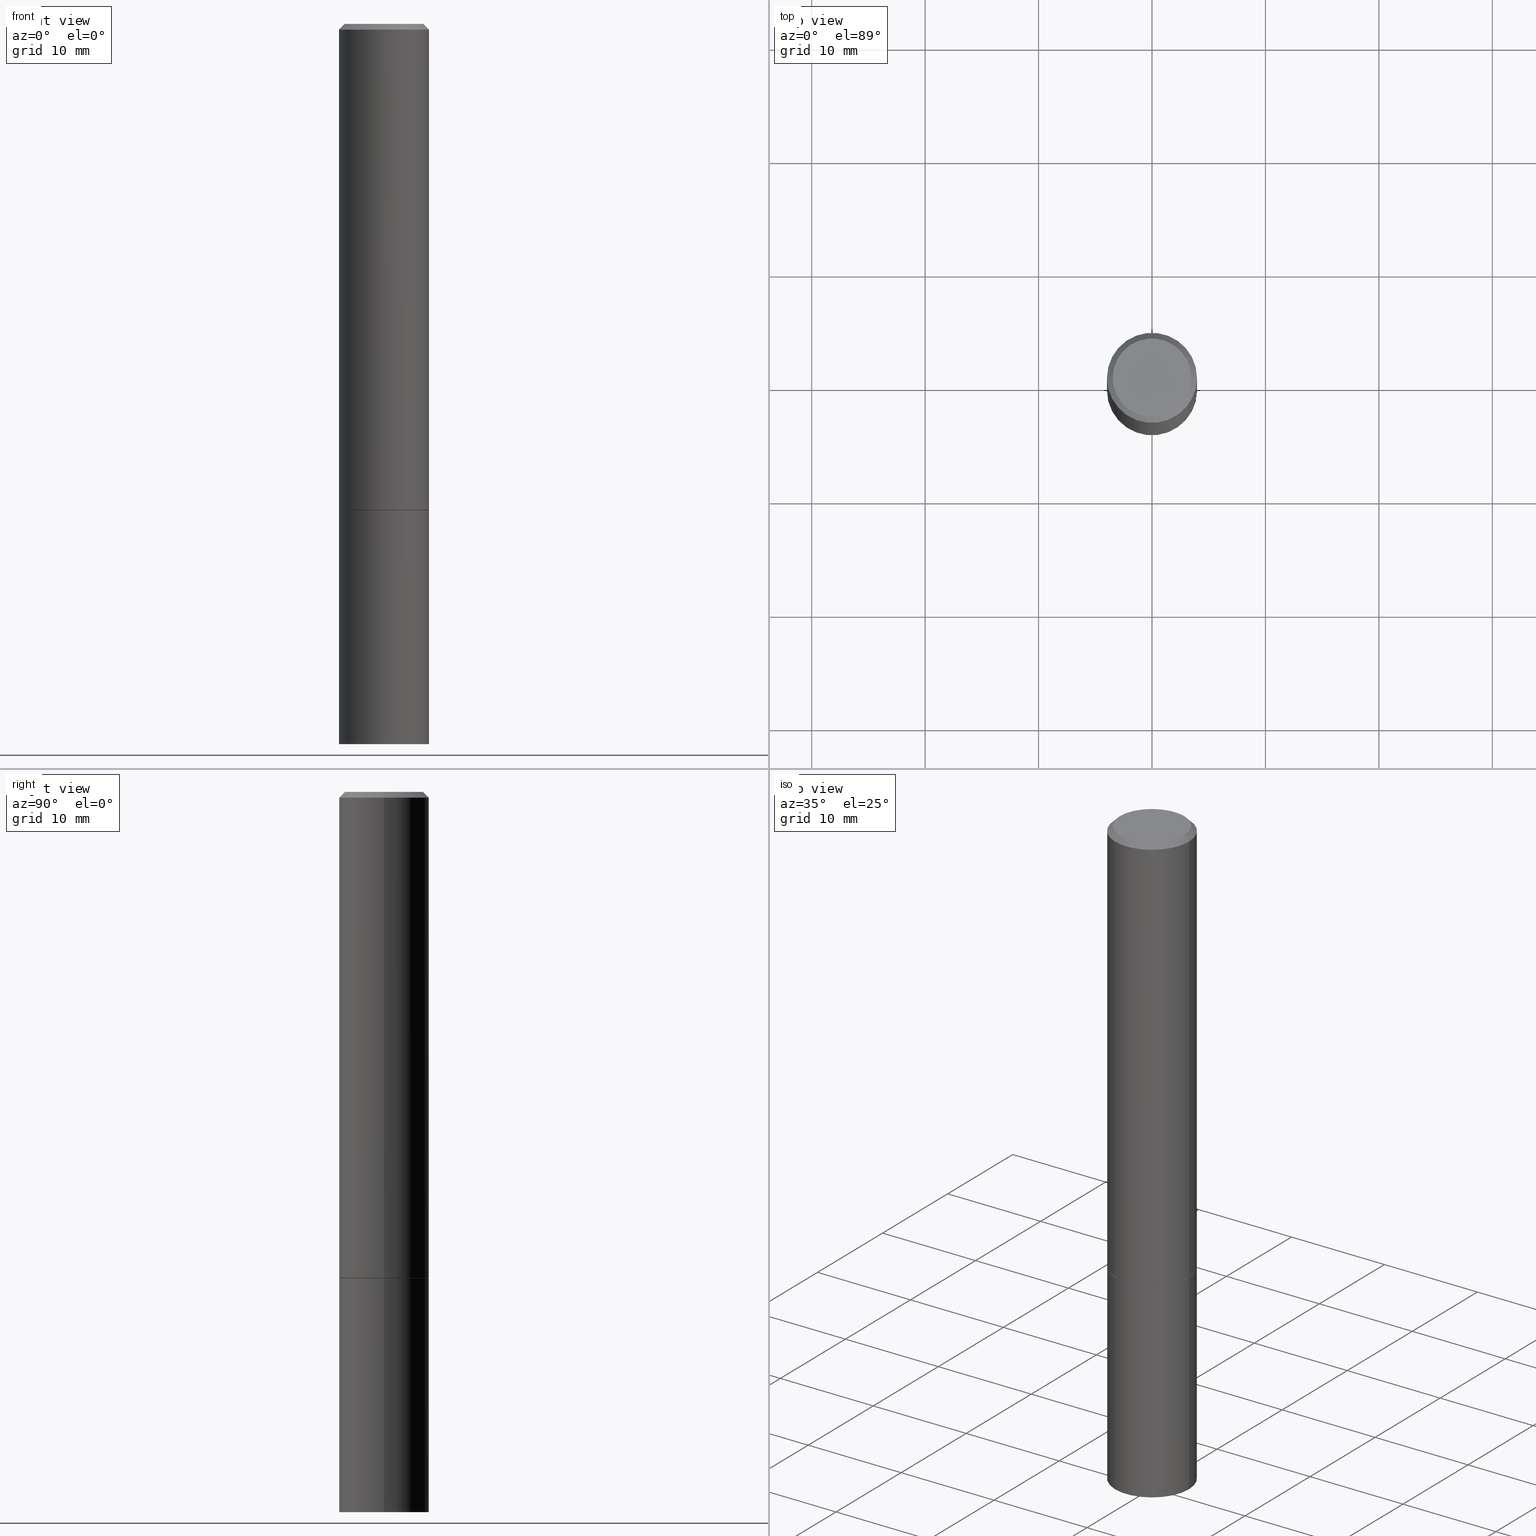
[diagram: canonical four-view strip — front | top / right | iso, engineering-drawing reading convention]
A machine part, canonical four-view strip (front | top / right | iso — engineering-drawing reading convention). The complete STEP part file that produces these views, byte-faithful:
ISO-10303-21;
HEADER;
FILE_DESCRIPTION (( 'STEP AP203' ),
    '1' );
FILE_NAME ('35283.STEP',
    '2024-02-27T18:20:43',
    ( '' ),
    ( '' ),
    'SwSTEP 2.0',
    'SolidWorks 2023',
    '' );
FILE_SCHEMA (( 'CONFIG_CONTROL_DESIGN' ));
ENDSEC;

DATA;
#1 = EDGE_CURVE ( 'NONE', #228, #45, #48, .T. ) ;
#2 = DIRECTION ( 'NONE',  ( -2.445468806185136597E-29, 3.491481338843145583E-15, 1.000000000000000000 ) ) ;
#3 = DIRECTION ( 'NONE',  ( 2.445468806185136597E-29, -3.491481338843145583E-15, -1.000000000000000000 ) ) ;
#4 = CC_DESIGN_APPROVAL ( #40, ( #43 ) ) ;
#5 = CALENDAR_DATE ( 2024, 27, 2 ) ;
#6 = DIRECTION ( 'NONE',  ( -1.000000000000000000, 6.982962677686266711E-15, 0.000000000000000000 ) ) ;
#7 = CALENDAR_DATE ( 2024, 27, 2 ) ;
#8 = CYLINDRICAL_SURFACE ( 'NONE', #366, 0.1562499999999999167 ) ;
#9 = ORIENTED_EDGE ( 'NONE', *, *, #169, .F. ) ;
#10 = ORIENTED_EDGE ( 'NONE', *, *, #73, .F. ) ;
#11 = PERSON_AND_ORGANIZATION ( #348, #345 ) ;
#12 = CONICAL_SURFACE ( 'NONE', #36, 0.1552499999999999991, 0.7853981633974141952 ) ;
#13 = PRODUCT ( '35283', '35283', '', ( #49 ) ) ;
#14 = ORIENTED_EDGE ( 'NONE', *, *, #269, .T. ) ;
#15 = VERTEX_POINT ( 'NONE', #127 ) ;
#16 = PLANE ( 'NONE',  #111 ) ;
#17 = VECTOR ( 'NONE', #118, 39.37007874015748143 ) ;
#18 = ORIENTED_EDGE ( 'NONE', *, *, #1, .T. ) ;
#19 = ADVANCED_FACE ( 'NONE', ( #157 ), #16, .F. ) ;
#20 = CARTESIAN_POINT ( 'NONE',  ( 0.000000000000000000, 0.000000000000000000, 0.000000000000000000 ) ) ;
#21 = EDGE_CURVE ( 'NONE', #15, #45, #324, .T. ) ;
#22 = CIRCLE ( 'NONE', #141, 0.1562500000000000000 ) ;
#23 = EDGE_CURVE ( 'NONE', #206, #83, #282, .T. ) ;
#24 = FACE_OUTER_BOUND ( 'NONE', #323, .T. ) ;
#25 = DIRECTION ( 'NONE',  ( 0.000000000000000000, 0.000000000000000000, 1.000000000000000000 ) ) ;
#26 = PERSON_AND_ORGANIZATION ( #348, #345 ) ;
#27 = DIRECTION ( 'NONE',  ( -2.445468806185136877E-29, 3.491481338843145188E-15, 1.000000000000000000 ) ) ;
#28 = CC_DESIGN_APPROVAL ( #322, ( #326 ) ) ;
#29 = ORIENTED_EDGE ( 'NONE', *, *, #352, .T. ) ;
#30 = CALENDAR_DATE ( 2024, 27, 2 ) ;
#31 = ORIENTED_EDGE ( 'NONE', *, *, #39, .F. ) ;
#32 = CIRCLE ( 'NONE', #257, 0.1362499999999998157 ) ;
#33 = PERSON_AND_ORGANIZATION_ROLE ( 'creator' ) ;
#34 = ORIENTED_EDGE ( 'NONE', *, *, #352, .F. ) ;
#35 = DIRECTION ( 'NONE',  ( 1.000000000000000000, -6.982962677686266711E-15, 4.876176775795935232E-29 ) ) ;
#36 = AXIS2_PLACEMENT_3D ( 'NONE', #296, #71, #99 ) ;
#37 = CARTESIAN_POINT ( 'NONE',  ( 4.127951344840510809E-29, -5.893620499967230340E-15, -1.688000000000000167 ) ) ;
#38 = DIRECTION ( 'NONE',  ( 0.7071067811865232589, -2.468850131082003836E-15, 0.7071067811865715536 ) ) ;
#39 = EDGE_CURVE ( 'NONE', #291, #206, #155, .T. ) ;
#40 = APPROVAL ( #146, 'UNSPECIFIED' ) ;
#41 = ORIENTED_EDGE ( 'NONE', *, *, #81, .T. ) ;
#42 = AXIS2_PLACEMENT_3D ( 'NONE', #219, #330, #163 ) ;
#43 = SECURITY_CLASSIFICATION ( '', '', #288 ) ;
#44 = ORIENTED_EDGE ( 'NONE', *, *, #50, .F. ) ;
#45 = VERTEX_POINT ( 'NONE', #94 ) ;
#46 = EDGE_CURVE ( 'NONE', #83, #206, #274, .T. ) ;
#47 = DIRECTION ( 'NONE',  ( -2.445468806185136597E-29, 3.491481338843145583E-15, 1.000000000000000000 ) ) ;
#48 = CIRCLE ( 'NONE', #72, 0.1562500000000000000 ) ;
#49 = MECHANICAL_CONTEXT ( 'NONE', #226, 'mechanical' ) ;
#50 = EDGE_CURVE ( 'NONE', #45, #228, #292, .T. ) ;
#51 = PLANE ( 'NONE',  #325 ) ;
#52 = CARTESIAN_POINT ( 'NONE',  ( 0.000000000000000000, 0.000000000000000000, 0.000000000000000000 ) ) ;
#53 = CLOSED_SHELL ( 'NONE', ( #242, #218, #107, #283 ) ) ;
#54 = LOCAL_TIME ( 13, 20, 43.00000000000000000, #235 ) ;
#55 = CARTESIAN_POINT ( 'NONE',  ( 4.890937612370281041E-31, -6.982962677686302702E-17, -0.02000000000000003511 ) ) ;
#56 = EDGE_LOOP ( 'NONE', ( #176, #41 ) ) ;
#57 = PERSON_AND_ORGANIZATION ( #348, #345 ) ;
#58 = EDGE_CURVE ( 'NONE', #15, #125, #132, .T. ) ;
#59 = CC_DESIGN_PERSON_AND_ORGANIZATION_ASSIGNMENT ( #11, #144, ( #79 ) ) ;
#60 = AXIS2_PLACEMENT_3D ( 'NONE', #186, #301, #6 ) ;
#61 = DIRECTION ( 'NONE',  ( -2.445468806185136597E-29, 3.491481338843145583E-15, 1.000000000000000000 ) ) ;
#62 = SHAPE_DEFINITION_REPRESENTATION ( #238, #130 ) ;
#63 = EDGE_LOOP ( 'NONE', ( #309, #358, #44, #353 ) ) ;
#64 = CARTESIAN_POINT ( 'NONE',  ( 4.127951344840510809E-29, -5.893620499967230340E-15, -1.688000000000000167 ) ) ;
#65 = DIRECTION ( 'NONE',  ( 1.000000000000000000, -6.982962677686269077E-15, 0.000000000000000000 ) ) ;
#66 = LOCAL_TIME ( 13, 20, 43.00000000000000000, #164 ) ;
#67 = CARTESIAN_POINT ( 'NONE',  ( 9.514286648347523799E-16, 0.1362499999999998157, -4.757143324173778663E-16 ) ) ;
#68 = DIRECTION ( 'NONE',  ( -2.438088387897960049E-29, 3.491481338843145188E-15, 1.000000000000000000 ) ) ;
#69 = DIRECTION ( 'NONE',  ( 1.000000000000000000, -6.982962677686265922E-15, 4.876176775795935793E-29 ) ) ;
#70 = DIRECTION ( 'NONE',  ( 2.438088387897960049E-29, -3.491481338843145188E-15, -1.000000000000000000 ) ) ;
#71 = DIRECTION ( 'NONE',  ( -2.445468806185136597E-29, 3.491481338843145583E-15, 1.000000000000000000 ) ) ;
#72 = AXIS2_PLACEMENT_3D ( 'NONE', #159, #215, #153 ) ;
#73 = EDGE_CURVE ( 'NONE', #321, #291, #22, .T. ) ;
#74 = ORIENTED_EDGE ( 'NONE', *, *, #81, .F. ) ;
#75 = LENGTH_MEASURE_WITH_UNIT ( LENGTH_MEASURE( 0.02539999999999999897 ), #183 );
#76 = FACE_OUTER_BOUND ( 'NONE', #122, .T. ) ;
#77 = CARTESIAN_POINT ( 'NONE',  ( 4.890937612370281041E-31, -6.982962677686302702E-17, -0.02000000000000003511 ) ) ;
#78 = VECTOR ( 'NONE', #328, 39.37007874015748143 ) ;
#79 = PRODUCT_DEFINITION_FORMATION_WITH_SPECIFIED_SOURCE ( 'ANY', '', #13, .NOT_KNOWN. ) ;
#80 = ADVANCED_FACE ( 'NONE', ( #181 ), #12, .T. ) ;
#81 = EDGE_CURVE ( 'NONE', #258, #167, #354, .T. ) ;
#82 = LOCAL_TIME ( 13, 20, 43.00000000000000000, #110 ) ;
#83 = VERTEX_POINT ( 'NONE', #185 ) ;
#84 = FACE_OUTER_BOUND ( 'NONE', #92, .T. ) ;
#85 = COORDINATED_UNIVERSAL_TIME_OFFSET ( 5, 0, .BEHIND. ) ;
#86 = EDGE_LOOP ( 'NONE', ( #203, #143, #231, #34 ) ) ;
#87 = DATE_TIME_ROLE ( 'classification_date' ) ;
#88 = DIRECTION ( 'NONE',  ( 1.000000000000000000, -6.982962677686266711E-15, 4.876176775795936353E-29 ) ) ;
#89 = VECTOR ( 'NONE', #91, 39.37007874015748143 ) ;
#90 = APPROVAL_DATE_TIME ( #115, #40 ) ;
#91 = DIRECTION ( 'NONE',  ( -2.445468806185136877E-29, 3.491481338843145188E-15, 1.000000000000000000 ) ) ;
#92 = EDGE_LOOP ( 'NONE', ( #270, #199, #239, #212 ) ) ;
#93 = DIRECTION ( 'NONE',  ( 1.000000000000000000, -6.982962677686269077E-15, 0.000000000000000000 ) ) ;
#94 = CARTESIAN_POINT ( 'NONE',  ( 0.1562500000000000000, -6.981216937016866506E-15, -1.687000000000000055 ) ) ;
#95 = AXIS2_PLACEMENT_3D ( 'NONE', #97, #241, #277 ) ;
#96 = CIRCLE ( 'NONE', #302, 0.1562499999999998057 ) ;
#97 = CARTESIAN_POINT ( 'NONE',  ( 4.127951344840510809E-29, -5.893620499967230340E-15, -1.688000000000000167 ) ) ;
#98 = DIRECTION ( 'NONE',  ( -2.445468806185136597E-29, 3.491481338843145583E-15, 1.000000000000000000 ) ) ;
#99 = DIRECTION ( 'NONE',  ( 1.000000000000000000, -6.982962677686268288E-15, 0.000000000000000000 ) ) ;
#100 = AXIS2_PLACEMENT_3D ( 'NONE', #204, #230, #88 ) ;
#101 = DIRECTION ( 'NONE',  ( 1.000000000000000000, -6.982962677686268288E-15, 0.000000000000000000 ) ) ;
#102 = CARTESIAN_POINT ( 'NONE',  ( -0.1552499999999999991, -4.785204448351452406E-15, -1.688000000000000167 ) ) ;
#103 = CC_DESIGN_PERSON_AND_ORGANIZATION_ASSIGNMENT ( #229, #33, ( #79 ) ) ;
#104 = CC_DESIGN_APPROVAL ( #158, ( #79 ) ) ;
#105 = DIRECTION ( 'NONE',  ( -0.7071067811865232589, 7.493145998870265808E-15, 0.7071067811865715536 ) ) ;
#106 = PERSON_AND_ORGANIZATION_ROLE ( 'design_owner' ) ;
#107 = ADVANCED_FACE ( 'NONE', ( #24 ), #51, .F. ) ;
#108 = DIRECTION ( 'NONE',  ( 1.000000000000000000, -6.982962677686265133E-15, 0.000000000000000000 ) ) ;
#109 = ORIENTED_EDGE ( 'NONE', *, *, #318, .F. ) ;
#110 = COORDINATED_UNIVERSAL_TIME_OFFSET ( 5, 0, .BEHIND. ) ;
#111 = AXIS2_PLACEMENT_3D ( 'NONE', #248, #68, #69 ) ;
#112 = AXIS2_PLACEMENT_3D ( 'NONE', #55, #47, #161 ) ;
#113 = DIRECTION ( 'NONE',  ( -2.445468806185136597E-29, 3.491481338843145583E-15, 1.000000000000000000 ) ) ;
#114 = ORIENTED_EDGE ( 'NONE', *, *, #58, .F. ) ;
#115 = DATE_AND_TIME ( #5, #82 ) ;
#116 = APPROVAL_STATUS ( 'not_yet_approved' ) ;
#117 = EDGE_CURVE ( 'NONE', #258, #341, #162, .T. ) ;
#118 = DIRECTION ( 'NONE',  ( -0.7071067811865467956, 2.468850131082249172E-15, -0.7071067811865482389 ) ) ;
#119 = VECTOR ( 'NONE', #38, 39.37007874015748854 ) ;
#120 = ORIENTED_EDGE ( 'NONE', *, *, #1, .F. ) ;
#121 = DATE_AND_TIME ( #7, #237 ) ;
#122 = EDGE_LOOP ( 'NONE', ( #174, #109, #316, #313 ) ) ;
#123 = CARTESIAN_POINT ( 'NONE',  ( 4.125505876034325766E-29, -5.890129018628387333E-15, -1.687000000000000055 ) ) ;
#124 = CC_DESIGN_PERSON_AND_ORGANIZATION_ASSIGNMENT ( #307, #207, ( #326 ) ) ;
#125 = VERTEX_POINT ( 'NONE', #102 ) ;
#126 = CIRCLE ( 'NONE', #293, 0.1562500000000000000 ) ;
#127 = CARTESIAN_POINT ( 'NONE',  ( 0.1552499999999999991, -6.977725455678023499E-15, -1.688000000000000167 ) ) ;
#128 = ADVANCED_FACE ( 'NONE', ( #252 ), #156, .T. ) ;
#129 = EDGE_LOOP ( 'NONE', ( #114, #311 ) ) ;
#130 = ADVANCED_BREP_SHAPE_REPRESENTATION ( '35283', ( #189, #312, #160 ), #245 ) ;
#131 = LINE ( 'NONE', #365, #205 ) ;
#132 = CIRCLE ( 'NONE', #95, 0.1552499999999999991 ) ;
#133 = CARTESIAN_POINT ( 'NONE',  ( 1.091087918388520392E-15, 0.1562499999999940881, -1.688000000000000611 ) ) ;
#134 = CYLINDRICAL_SURFACE ( 'NONE', #42, 0.1562499999999999167 ) ;
#135 = VECTOR ( 'NONE', #201, 39.37007874015748143 ) ;
#136 = CARTESIAN_POINT ( 'NONE',  ( -0.1562500000000000000, -1.869756298077466803E-15, -1.687000000000000055 ) ) ;
#137 = DATE_AND_TIME ( #30, #54 ) ;
#138 = DIRECTION ( 'NONE',  ( -2.445468806185136597E-29, 3.491481338843145583E-15, 1.000000000000000000 ) ) ;
#139 = PERSON_AND_ORGANIZATION ( #348, #345 ) ;
#140 = DIRECTION ( 'NONE',  ( -2.445468806185136597E-29, 3.491481338843145583E-15, 1.000000000000000000 ) ) ;
#141 = AXIS2_PLACEMENT_3D ( 'NONE', #246, #299, #93 ) ;
#142 = CONICAL_SURFACE ( 'NONE', #331, 0.1552499999999999991, 0.7853981633974141952 ) ;
#143 = ORIENTED_EDGE ( 'NONE', *, *, #187, .T. ) ;
#144 = PERSON_AND_ORGANIZATION_ROLE ( 'design_supplier' ) ;
#145 = CARTESIAN_POINT ( 'NONE',  ( -0.1562499999999998057, 1.021258291611614692E-15, -0.02000000000000003511 ) ) ;
#146 = APPROVAL_STATUS ( 'not_yet_approved' ) ;
#147 = CARTESIAN_POINT ( 'NONE',  ( -0.1562500000000000000, 1.110223024625156540E-15, -7.685836078523291160E-30 ) ) ;
#148 = ORIENTED_EDGE ( 'NONE', *, *, #46, .T. ) ;
#149 = CARTESIAN_POINT ( 'NONE',  ( 0.1562499999999998057, -1.141782438928663330E-15, -0.02000000000000003511 ) ) ;
#150 =( CONVERSION_BASED_UNIT ( 'INCH', #75 ) LENGTH_UNIT ( ) NAMED_UNIT ( #171 ) );
#151 = ORIENTED_EDGE ( 'NONE', *, *, #271, .F. ) ;
#152 = ADVANCED_FACE ( 'NONE', ( #193 ), #134, .T. ) ;
#153 = DIRECTION ( 'NONE',  ( 1.000000000000000000, -6.982962677686269077E-15, 0.000000000000000000 ) ) ;
#154 =( NAMED_UNIT ( * ) SI_UNIT ( $, .STERADIAN. ) SOLID_ANGLE_UNIT ( ) );
#155 = LINE ( 'NONE', #184, #195 ) ;
#156 = CONICAL_SURFACE ( 'NONE', #364, 0.1562499999999998057, 0.7853981633974472798 ) ;
#157 = FACE_OUTER_BOUND ( 'NONE', #129, .T. ) ;
#158 = APPROVAL ( #116, 'UNSPECIFIED' ) ;
#159 = CARTESIAN_POINT ( 'NONE',  ( 4.125505876034325766E-29, -5.890129018628387333E-15, -1.687000000000000055 ) ) ;
#160 = AXIS2_PLACEMENT_3D ( 'NONE', #52, #25, #304 ) ;
#161 = DIRECTION ( 'NONE',  ( 1.000000000000000000, -6.982962677686265133E-15, 0.000000000000000000 ) ) ;
#162 = LINE ( 'NONE', #224, #78 ) ;
#163 = DIRECTION ( 'NONE',  ( 1.000000000000000000, -6.982962677686265133E-15, 4.876176775795935232E-29 ) ) ;
#164 = COORDINATED_UNIVERSAL_TIME_OFFSET ( 5, 0, .BEHIND. ) ;
#165 = CC_DESIGN_SECURITY_CLASSIFICATION ( #43, ( #79 ) ) ;
#166 = CARTESIAN_POINT ( 'NONE',  ( 0.000000000000000000, 0.000000000000000000, 0.000000000000000000 ) ) ;
#167 = VERTEX_POINT ( 'NONE', #280 ) ;
#168 = APPROVAL_ROLE ( '' ) ;
#169 = EDGE_CURVE ( 'NONE', #125, #228, #131, .T. ) ;
#170 = LINE ( 'NONE', #145, #17 ) ;
#171 = DIMENSIONAL_EXPONENTS ( 1.000000000000000000, 0.000000000000000000, 0.000000000000000000, 0.000000000000000000, 0.000000000000000000, 0.000000000000000000, 0.000000000000000000 ) ;
#172 = CIRCLE ( 'NONE', #197, 0.1552499999999999991 ) ;
#173 = CARTESIAN_POINT ( 'NONE',  ( 0.1562500000000000000, -9.819791265496344905E-15, -2.500000000000000000 ) ) ;
#174 = ORIENTED_EDGE ( 'NONE', *, *, #117, .F. ) ;
#175 = APPROVAL_ROLE ( '' ) ;
#176 = ORIENTED_EDGE ( 'NONE', *, *, #318, .T. ) ;
#177 = CARTESIAN_POINT ( 'NONE',  ( 0.000000000000000000, 0.000000000000000000, 0.000000000000000000 ) ) ;
#178 = AXIS2_PLACEMENT_3D ( 'NONE', #244, #98, #65 ) ;
#179 = ORIENTED_EDGE ( 'NONE', *, *, #117, .T. ) ;
#180 = UNCERTAINTY_MEASURE_WITH_UNIT (LENGTH_MEASURE( 1.000000000000000082E-05 ), #150, 'distance_accuracy_value', 'NONE');
#181 = FACE_OUTER_BOUND ( 'NONE', #63, .T. ) ;
#182 = ORIENTED_EDGE ( 'NONE', *, *, #306, .T. ) ;
#183 =( LENGTH_UNIT ( ) NAMED_UNIT ( * ) SI_UNIT ( $, .METRE. ) );
#184 = CARTESIAN_POINT ( 'NONE',  ( 0.1562500000000000000, -1.091087918388479174E-15, 7.619026212181150377E-30 ) ) ;
#185 = CARTESIAN_POINT ( 'NONE',  ( -0.1562500000000000000, -6.200938898912389918E-15, -1.688000000000000167 ) ) ;
#186 = CARTESIAN_POINT ( 'NONE',  ( 4.890937612370281041E-31, -6.982962677686302702E-17, -0.02000000000000003511 ) ) ;
#187 = EDGE_CURVE ( 'NONE', #228, #294, #332, .T. ) ;
#188 = ADVANCED_FACE ( 'NONE', ( #76 ), #287, .T. ) ;
#189 = MANIFOLD_SOLID_BREP ( 'Body-Move/Copy2[1]', #53 ) ;
#190 = CARTESIAN_POINT ( 'NONE',  ( 4.127951344840510809E-29, -5.893620499967230340E-15, -1.688000000000000167 ) ) ;
#191 = DIRECTION ( 'NONE',  ( -1.000000000000000000, 6.982962677686266711E-15, 0.000000000000000000 ) ) ;
#192 = APPROVAL_STATUS ( 'not_yet_approved' ) ;
#193 = FACE_OUTER_BOUND ( 'NONE', #297, .T. ) ;
#194 = PERSON_AND_ORGANIZATION_ROLE ( 'classification_officer' ) ;
#195 = VECTOR ( 'NONE', #319, 39.37007874015748143 ) ;
#196 = CARTESIAN_POINT ( 'NONE',  ( 0.1362499999999998157, -1.038262645562516744E-15, 6.957025900226686667E-30 ) ) ;
#197 = AXIS2_PLACEMENT_3D ( 'NONE', #64, #138, #346 ) ;
#198 = CYLINDRICAL_SURFACE ( 'NONE', #360, 0.1562500000000000000 ) ;
#199 = ORIENTED_EDGE ( 'NONE', *, *, #73, .T. ) ;
#200 = CYLINDRICAL_SURFACE ( 'NONE', #100, 0.1562500000000000000 ) ;
#201 = DIRECTION ( 'NONE',  ( -2.445468806185136877E-29, 3.491481338843145188E-15, 1.000000000000000000 ) ) ;
#202 = CARTESIAN_POINT ( 'NONE',  ( 1.091087918388540310E-15, 0.1562499999999912570, -2.500000000000000444 ) ) ;
#203 = ORIENTED_EDGE ( 'NONE', *, *, #50, .T. ) ;
#204 = CARTESIAN_POINT ( 'NONE',  ( 0.000000000000000000, 0.000000000000000000, 0.000000000000000000 ) ) ;
#205 = VECTOR ( 'NONE', #105, 39.37007874015748854 ) ;
#206 = VERTEX_POINT ( 'NONE', #308 ) ;
#207 = PERSON_AND_ORGANIZATION_ROLE ( 'creator' ) ;
#208 = FACE_OUTER_BOUND ( 'NONE', #86, .T. ) ;
#209 = CARTESIAN_POINT ( 'NONE',  ( -0.1562499999999998057, 1.021258291611614692E-15, -0.02000000000000003511 ) ) ;
#210 = EDGE_LOOP ( 'NONE', ( #151, #10 ) ) ;
#211 = ORIENTED_EDGE ( 'NONE', *, *, #213, .F. ) ;
#212 = ORIENTED_EDGE ( 'NONE', *, *, #46, .F. ) ;
#213 = EDGE_CURVE ( 'NONE', #294, #341, #96, .T. ) ;
#214 = PLANE ( 'NONE',  #220 ) ;
#215 = DIRECTION ( 'NONE',  ( -2.445468806185136597E-29, 3.491481338843145583E-15, 1.000000000000000000 ) ) ;
#216 = DIRECTION ( 'NONE',  ( -2.445468806185136597E-29, 3.491481338843145583E-15, 1.000000000000000000 ) ) ;
#217 = AXIS2_PLACEMENT_3D ( 'NONE', #202, #310, #233 ) ;
#218 = ADVANCED_FACE ( 'NONE', ( #340 ), #290, .T. ) ;
#219 = CARTESIAN_POINT ( 'NONE',  ( 0.000000000000000000, 0.000000000000000000, 0.000000000000000000 ) ) ;
#220 = AXIS2_PLACEMENT_3D ( 'NONE', #67, #70, #268 ) ;
#221 = FACE_OUTER_BOUND ( 'NONE', #357, .T. ) ;
#222 = APPLICATION_PROTOCOL_DEFINITION ( 'international standard', 'config_control_design', 1994, #249 ) ;
#223 = CC_DESIGN_PERSON_AND_ORGANIZATION_ASSIGNMENT ( #26, #106, ( #13 ) ) ;
#224 = CARTESIAN_POINT ( 'NONE',  ( 0.1562499999999998057, -1.141782438928663330E-15, -0.02000000000000003511 ) ) ;
#225 = DIRECTION ( 'NONE',  ( 1.000000000000000000, -6.982962677686266711E-15, 4.876176775795936353E-29 ) ) ;
#226 = APPLICATION_CONTEXT ( 'configuration controlled 3d designs of mechanical parts and assemblies' ) ;
#227 = FACE_OUTER_BOUND ( 'NONE', #267, .T. ) ;
#228 = VERTEX_POINT ( 'NONE', #136 ) ;
#229 = PERSON_AND_ORGANIZATION ( #348, #345 ) ;
#230 = DIRECTION ( 'NONE',  ( -2.445468806185136597E-29, 3.491481338843145583E-15, 1.000000000000000000 ) ) ;
#231 = ORIENTED_EDGE ( 'NONE', *, *, #269, .F. ) ;
#232 = CARTESIAN_POINT ( 'NONE',  ( 0.000000000000000000, 0.000000000000000000, 0.000000000000000000 ) ) ;
#233 = DIRECTION ( 'NONE',  ( -1.000000000000000000, 6.982962677686265922E-15, -4.876176775795935793E-29 ) ) ;
#234 = ORIENTED_EDGE ( 'NONE', *, *, #23, .F. ) ;
#235 = COORDINATED_UNIVERSAL_TIME_OFFSET ( 5, 0, .BEHIND. ) ;
#236 = AXIS2_PLACEMENT_3D ( 'NONE', #123, #276, #356 ) ;
#237 = LOCAL_TIME ( 13, 20, 43.00000000000000000, #286 ) ;
#238 = PRODUCT_DEFINITION_SHAPE ( 'NONE', 'NONE',  #326 ) ;
#239 = ORIENTED_EDGE ( 'NONE', *, *, #39, .T. ) ;
#240 = CARTESIAN_POINT ( 'NONE',  ( 0.1552499999999999991, -6.977725455678023499E-15, -1.688000000000000167 ) ) ;
#241 = DIRECTION ( 'NONE',  ( -2.445468806185136597E-29, 3.491481338843145583E-15, 1.000000000000000000 ) ) ;
#242 = ADVANCED_FACE ( 'NONE', ( #227 ), #198, .T. ) ;
#243 = AXIS2_PLACEMENT_3D ( 'NONE', #20, #216, #327 ) ;
#244 = CARTESIAN_POINT ( 'NONE',  ( 4.127951344840510809E-29, -5.893620499967230340E-15, -1.688000000000000167 ) ) ;
#245 =( GEOMETRIC_REPRESENTATION_CONTEXT ( 3 ) GLOBAL_UNCERTAINTY_ASSIGNED_CONTEXT ( ( #180 ) ) GLOBAL_UNIT_ASSIGNED_CONTEXT ( ( #150, #247, #154 ) ) REPRESENTATION_CONTEXT ( 'NONE', 'WORKASPACE' ) );
#246 = CARTESIAN_POINT ( 'NONE',  ( 6.113672015462842613E-29, -8.728703347107864943E-15, -2.500000000000000000 ) ) ;
#247 =( NAMED_UNIT ( * ) PLANE_ANGLE_UNIT ( ) SI_UNIT ( $, .RADIAN. ) );
#248 = CARTESIAN_POINT ( 'NONE',  ( 4.127951344840510809E-29, -5.893620499967230340E-15, -1.688000000000000167 ) ) ;
#249 = APPLICATION_CONTEXT ( 'configuration controlled 3d designs of mechanical parts and assemblies' ) ;
#250 = APPROVAL_PERSON_ORGANIZATION ( #57, #158, #168 ) ;
#251 = CC_DESIGN_DATE_AND_TIME_ASSIGNMENT ( #121, #87, ( #43 ) ) ;
#252 = FACE_OUTER_BOUND ( 'NONE', #264, .T. ) ;
#253 = ADVANCED_FACE ( 'NONE', ( #221 ), #142, .T. ) ;
#254 = CARTESIAN_POINT ( 'NONE',  ( 0.1562499999999999167, -1.091087918388478385E-15, 7.619026212181144772E-30 ) ) ;
#255 = ORIENTED_EDGE ( 'NONE', *, *, #350, .F. ) ;
#256 = DIRECTION ( 'NONE',  ( 1.000000000000000000, -6.982962677686269077E-15, 0.000000000000000000 ) ) ;
#257 = AXIS2_PLACEMENT_3D ( 'NONE', #177, #263, #35 ) ;
#258 = VERTEX_POINT ( 'NONE', #196 ) ;
#259 = CALENDAR_DATE ( 2024, 27, 2 ) ;
#260 = LINE ( 'NONE', #254, #89 ) ;
#261 = ORIENTED_EDGE ( 'NONE', *, *, #271, .T. ) ;
#262 = APPROVAL_DATE_TIME ( #344, #322 ) ;
#263 = DIRECTION ( 'NONE',  ( -2.445468806185136597E-29, 3.491481338843145583E-15, 1.000000000000000000 ) ) ;
#264 = EDGE_LOOP ( 'NONE', ( #74, #179, #14, #255 ) ) ;
#265 = PRODUCT_RELATED_PRODUCT_CATEGORY ( 'detail', '', ( #13 ) ) ;
#266 = CLOSED_SHELL ( 'NONE', ( #80, #295, #128, #188, #152, #253, #19, #362 ) ) ;
#267 = EDGE_LOOP ( 'NONE', ( #261, #182, #234, #31 ) ) ;
#268 = DIRECTION ( 'NONE',  ( -1.000000000000000000, 6.982962677686265922E-15, -4.876176775795935793E-29 ) ) ;
#269 = EDGE_CURVE ( 'NONE', #341, #294, #355, .T. ) ;
#270 = ORIENTED_EDGE ( 'NONE', *, *, #306, .F. ) ;
#271 = EDGE_CURVE ( 'NONE', #291, #321, #126, .T. ) ;
#272 = ORIENTED_EDGE ( 'NONE', *, *, #349, .T. ) ;
#273 = APPLICATION_PROTOCOL_DEFINITION ( 'international standard', 'config_control_design', 1994, #226 ) ;
#274 = CIRCLE ( 'NONE', #178, 0.1562500000000000000 ) ;
#275 = APPROVAL_PERSON_ORGANIZATION ( #333, #322, #305 ) ;
#276 = DIRECTION ( 'NONE',  ( -2.445468806185136597E-29, 3.491481338843145583E-15, 1.000000000000000000 ) ) ;
#277 = DIRECTION ( 'NONE',  ( 1.000000000000000000, -6.982962677686268288E-15, 0.000000000000000000 ) ) ;
#278 = VECTOR ( 'NONE', #27, 39.37007874015748143 ) ;
#279 = CARTESIAN_POINT ( 'NONE',  ( 6.113672015462842613E-29, -8.728703347107864943E-15, -2.500000000000000000 ) ) ;
#280 = CARTESIAN_POINT ( 'NONE',  ( -0.1362499999999998157, 9.863434782231836346E-16, -6.775751096333130074E-30 ) ) ;
#281 = CARTESIAN_POINT ( 'NONE',  ( -0.1562499999999999167, 1.110223024625155949E-15, -7.685836078523285555E-30 ) ) ;
#282 = CIRCLE ( 'NONE', #359, 0.1562500000000000000 ) ;
#283 = ADVANCED_FACE ( 'NONE', ( #84 ), #200, .T. ) ;
#284 = APPROVAL_DATE_TIME ( #137, #158 ) ;
#285 = DATE_TIME_ROLE ( 'creation_date' ) ;
#286 = COORDINATED_UNIVERSAL_TIME_OFFSET ( 5, 0, .BEHIND. ) ;
#287 = CONICAL_SURFACE ( 'NONE', #60, 0.1562499999999998057, 0.7853981633974472798 ) ;
#288 = SECURITY_CLASSIFICATION_LEVEL ( 'unclassified' ) ;
#289 = DIRECTION ( 'NONE',  ( 1.000000000000000000, -6.982962677686265133E-15, 4.876176775795935232E-29 ) ) ;
#290 = PLANE ( 'NONE',  #217 ) ;
#291 = VERTEX_POINT ( 'NONE', #173 ) ;
#292 = CIRCLE ( 'NONE', #236, 0.1562500000000000000 ) ;
#293 = AXIS2_PLACEMENT_3D ( 'NONE', #279, #140, #256 ) ;
#294 = VERTEX_POINT ( 'NONE', #209 ) ;
#295 = ADVANCED_FACE ( 'NONE', ( #208 ), #8, .T. ) ;
#296 = CARTESIAN_POINT ( 'NONE',  ( 4.127951344840510809E-29, -5.893620499967230340E-15, -1.688000000000000167 ) ) ;
#297 = EDGE_LOOP ( 'NONE', ( #336, #18, #29, #211 ) ) ;
#298 = APPROVAL_PERSON_ORGANIZATION ( #139, #40, #175 ) ;
#299 = DIRECTION ( 'NONE',  ( -2.445468806185136597E-29, 3.491481338843145583E-15, 1.000000000000000000 ) ) ;
#300 = DIRECTION ( 'NONE',  ( 1.000000000000000000, -6.982962677686269077E-15, 0.000000000000000000 ) ) ;
#301 = DIRECTION ( 'NONE',  ( 2.445468806185136597E-29, -3.491481338843145583E-15, -1.000000000000000000 ) ) ;
#302 = AXIS2_PLACEMENT_3D ( 'NONE', #337, #113, #108 ) ;
#303 = CC_DESIGN_DATE_AND_TIME_ASSIGNMENT ( #342, #285, ( #326 ) ) ;
#304 = DIRECTION ( 'NONE',  ( 1.000000000000000000, 0.000000000000000000, 0.000000000000000000 ) ) ;
#305 = APPROVAL_ROLE ( '' ) ;
#306 = EDGE_CURVE ( 'NONE', #321, #83, #339, .T. ) ;
#307 = PERSON_AND_ORGANIZATION ( #348, #345 ) ;
#308 = CARTESIAN_POINT ( 'NONE',  ( 0.1562500000000000000, -6.984708418355709513E-15, -1.688000000000000167 ) ) ;
#309 = ORIENTED_EDGE ( 'NONE', *, *, #58, .T. ) ;
#310 = DIRECTION ( 'NONE',  ( 2.438088387897960049E-29, -3.491481338843145188E-15, -1.000000000000000000 ) ) ;
#311 = ORIENTED_EDGE ( 'NONE', *, *, #349, .F. ) ;
#312 = MANIFOLD_SOLID_BREP ( 'Body-Move/Copy2[2]', #266 ) ;
#313 = ORIENTED_EDGE ( 'NONE', *, *, #213, .T. ) ;
#314 = CALENDAR_DATE ( 2024, 27, 2 ) ;
#315 = FACE_OUTER_BOUND ( 'NONE', #56, .T. ) ;
#316 = ORIENTED_EDGE ( 'NONE', *, *, #350, .T. ) ;
#317 = CARTESIAN_POINT ( 'NONE',  ( -0.1562500000000000000, -6.200938898912389918E-15, -2.500000000000000000 ) ) ;
#318 = EDGE_CURVE ( 'NONE', #167, #258, #32, .T. ) ;
#319 = DIRECTION ( 'NONE',  ( -2.445468806185136877E-29, 3.491481338843145188E-15, 1.000000000000000000 ) ) ;
#320 = LOCAL_TIME ( 13, 20, 43.00000000000000000, #85 ) ;
#321 = VERTEX_POINT ( 'NONE', #317 ) ;
#322 = APPROVAL ( #192, 'UNSPECIFIED' ) ;
#323 = EDGE_LOOP ( 'NONE', ( #347, #148 ) ) ;
#324 = LINE ( 'NONE', #240, #119 ) ;
#325 = AXIS2_PLACEMENT_3D ( 'NONE', #133, #329, #363 ) ;
#326 = PRODUCT_DEFINITION ( 'UNKNOWN', '', #79, #361 ) ;
#327 = DIRECTION ( 'NONE',  ( 1.000000000000000000, -6.982962677686266711E-15, 4.876176775795935232E-29 ) ) ;
#328 = DIRECTION ( 'NONE',  ( 0.7071067811865467956, -7.319954787623254468E-15, -0.7071067811865482389 ) ) ;
#329 = DIRECTION ( 'NONE',  ( 2.438088387897960049E-29, -3.491481338843145188E-15, -1.000000000000000000 ) ) ;
#330 = DIRECTION ( 'NONE',  ( -2.445468806185136597E-29, 3.491481338843145583E-15, 1.000000000000000000 ) ) ;
#331 = AXIS2_PLACEMENT_3D ( 'NONE', #190, #334, #101 ) ;
#332 = LINE ( 'NONE', #281, #278 ) ;
#333 = PERSON_AND_ORGANIZATION ( #348, #345 ) ;
#334 = DIRECTION ( 'NONE',  ( -2.445468806185136597E-29, 3.491481338843145583E-15, 1.000000000000000000 ) ) ;
#335 = CC_DESIGN_PERSON_AND_ORGANIZATION_ASSIGNMENT ( #338, #194, ( #43 ) ) ;
#336 = ORIENTED_EDGE ( 'NONE', *, *, #187, .F. ) ;
#337 = CARTESIAN_POINT ( 'NONE',  ( 4.890937612370281041E-31, -6.982962677686302702E-17, -0.02000000000000003511 ) ) ;
#338 = PERSON_AND_ORGANIZATION ( #348, #345 ) ;
#339 = LINE ( 'NONE', #147, #135 ) ;
#340 = FACE_OUTER_BOUND ( 'NONE', #210, .T. ) ;
#341 = VERTEX_POINT ( 'NONE', #149 ) ;
#342 = DATE_AND_TIME ( #259, #320 ) ;
#343 = ORIENTED_EDGE ( 'NONE', *, *, #21, .T. ) ;
#344 = DATE_AND_TIME ( #314, #66 ) ;
#345 = ORGANIZATION ( 'UNSPECIFIED', 'UNSPECIFIED', '' ) ;
#346 = DIRECTION ( 'NONE',  ( 1.000000000000000000, -6.982962677686268288E-15, 0.000000000000000000 ) ) ;
#347 = ORIENTED_EDGE ( 'NONE', *, *, #23, .T. ) ;
#348 = PERSON ( 'UNSPECIFIED', 'UNSPECIFIED', 'UNSPECIFIED', ('UNSPECIFIED'), ('UNSPECIFIED'), ('UNSPECIFIED') ) ;
#349 = EDGE_CURVE ( 'NONE', #125, #15, #172, .T. ) ;
#350 = EDGE_CURVE ( 'NONE', #167, #294, #170, .T. ) ;
#351 = DIRECTION ( 'NONE',  ( -2.445468806185136597E-29, 3.491481338843145583E-15, 1.000000000000000000 ) ) ;
#352 = EDGE_CURVE ( 'NONE', #45, #341, #260, .T. ) ;
#353 = ORIENTED_EDGE ( 'NONE', *, *, #21, .F. ) ;
#354 = CIRCLE ( 'NONE', #243, 0.1362499999999998157 ) ;
#355 = CIRCLE ( 'NONE', #112, 0.1562499999999998057 ) ;
#356 = DIRECTION ( 'NONE',  ( 1.000000000000000000, -6.982962677686269077E-15, 0.000000000000000000 ) ) ;
#357 = EDGE_LOOP ( 'NONE', ( #9, #272, #343, #120 ) ) ;
#358 = ORIENTED_EDGE ( 'NONE', *, *, #169, .T. ) ;
#359 = AXIS2_PLACEMENT_3D ( 'NONE', #37, #351, #300 ) ;
#360 = AXIS2_PLACEMENT_3D ( 'NONE', #166, #2, #225 ) ;
#361 = DESIGN_CONTEXT ( 'detailed design', #249, 'design' ) ;
#362 = ADVANCED_FACE ( 'NONE', ( #315 ), #214, .F. ) ;
#363 = DIRECTION ( 'NONE',  ( -1.000000000000000000, 6.982962677686265922E-15, -4.876176775795935793E-29 ) ) ;
#364 = AXIS2_PLACEMENT_3D ( 'NONE', #77, #3, #191 ) ;
#365 = CARTESIAN_POINT ( 'NONE',  ( -0.1552499999999999991, -4.790502902699674808E-15, -1.688000000000000167 ) ) ;
#366 = AXIS2_PLACEMENT_3D ( 'NONE', #232, #61, #289 ) ;
ENDSEC;
END-ISO-10303-21;
